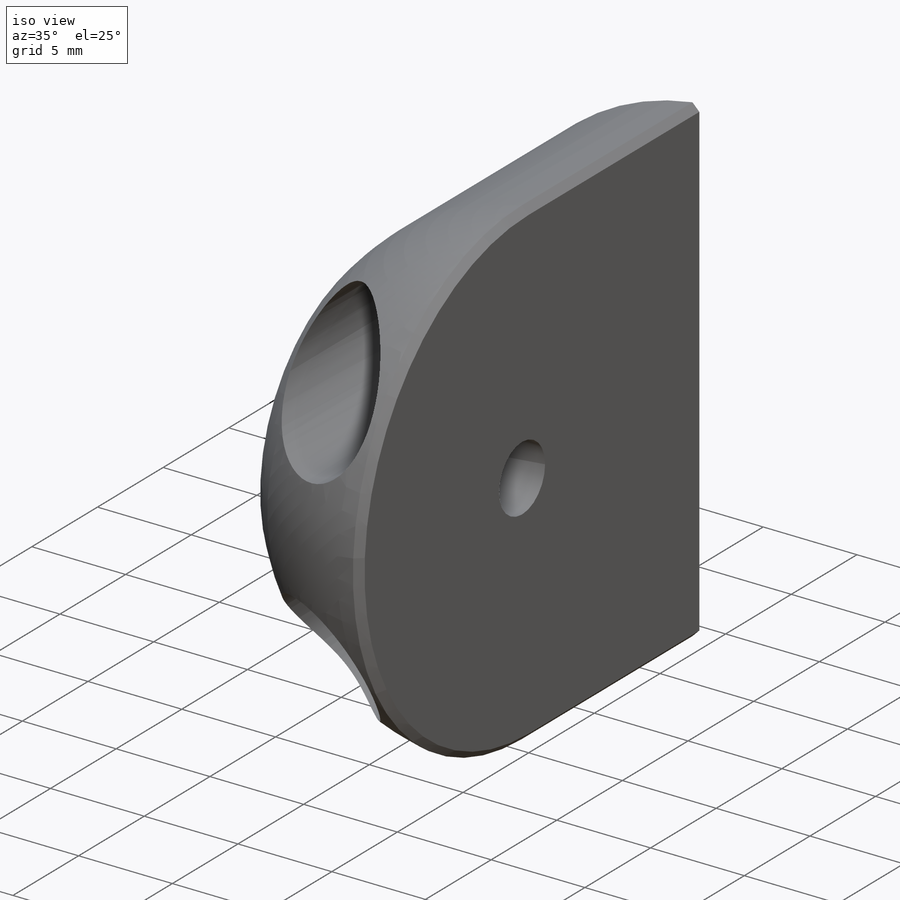
[diagram: iso view]
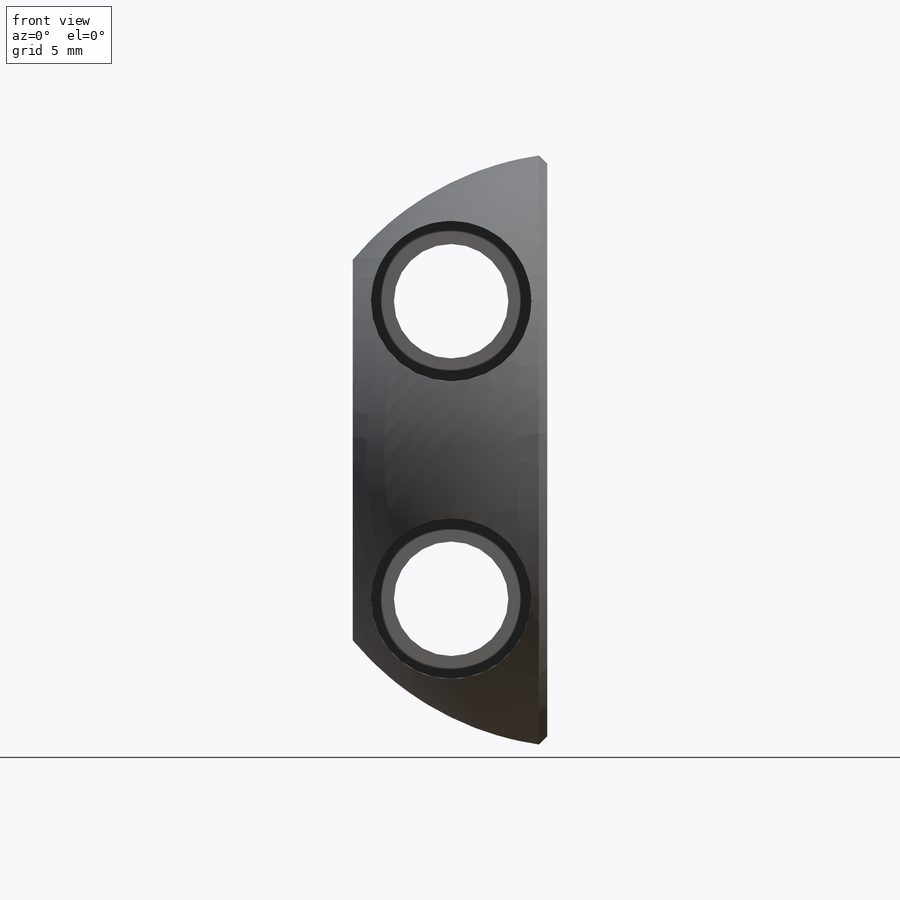
[diagram: front view]
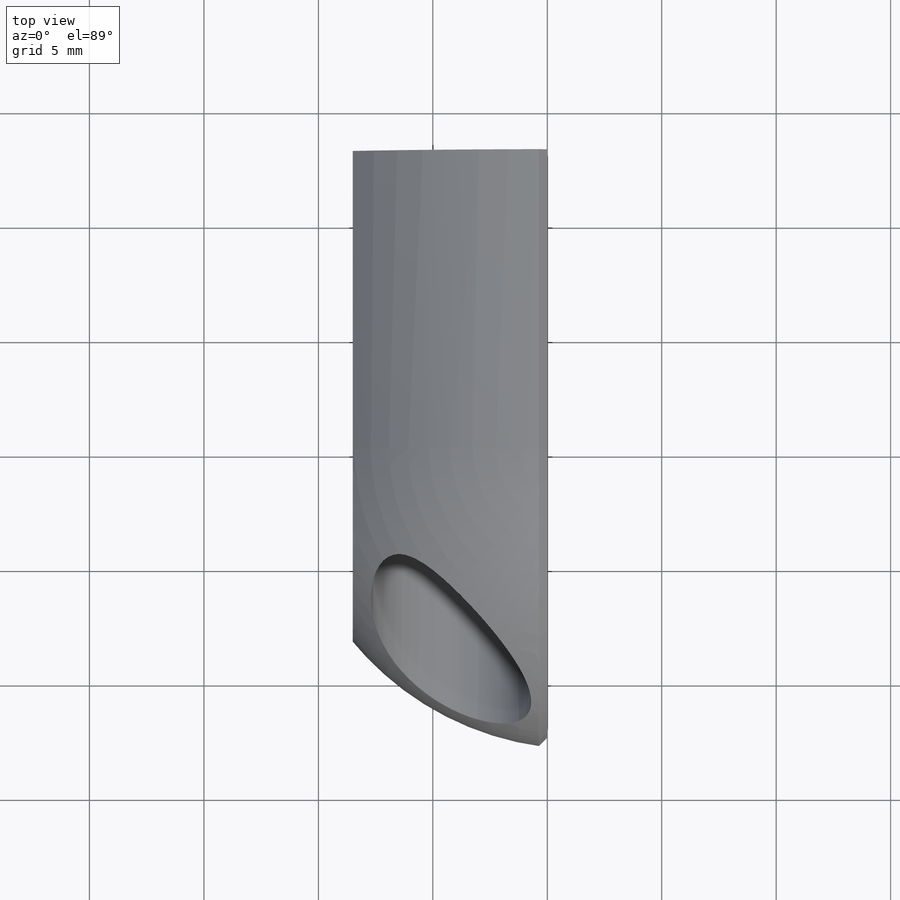
[diagram: top view]
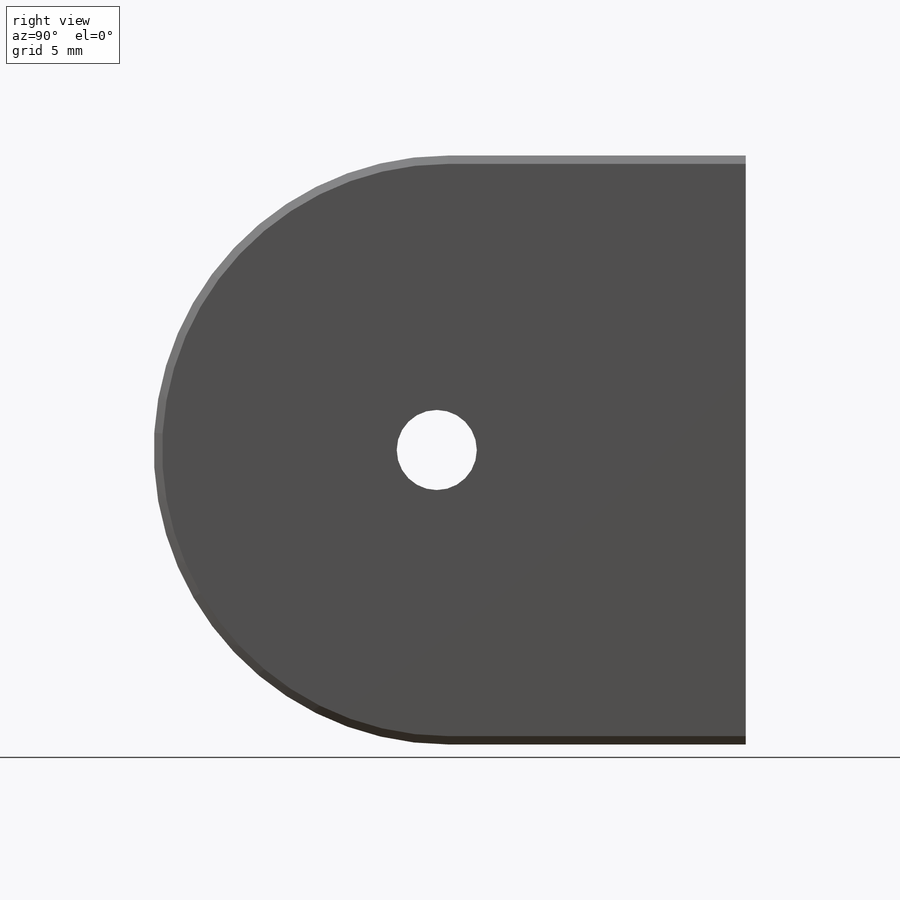
[diagram: right view]
SOLIDWORKS PART (.sldprt)
format: sldprt  version: not decoded by parser v0  size: 289,280 bytes
history: native  units: mm
features: sketch x9, cut_extrude x6, plane x3, material x1, revolve x1, extrude x1, chamfer x1 (+10 scaffold rows collapsed)
feature tree (32):
  scaffold x10  (default folders/planes/origin — collapsed)
  material  "Material <não especificado>"
  plane  "Plano frontal"
  plane  "Plano superior"
  plane  "Plano direito"
  sketch  "Esboço1"  dims[D1=0.0mm]
  sketch  "Esboço2"  dims[c1.D1=26.0mm c1.D2=26.0mm c2.D1=~0.902035mm]
  revolve  "Revolução1"  Angle=90deg
  sketch  "Esboço3"  dims[D1=2.0mm]
  cut_extrude  "Corte-extrusão1"  [1 undecoded]
  sketch  "Esboço7"  dims[D1=0.0mm]
  extrude  "Ressalto-extrusão1"  Depth=13mm
  sketch  "Esboço4"  dims[D1=3.0mm]
  cut_extrude  "Corte-extrusão3"  Depth=6.5mm
  sketch  "Esboço6"  dims[D1=12.5mm]
  cut_extrude  "Corte-extrusão4"  [1 undecoded]
  sketch  "Esboço8"  dims[D1=6.2mm]
  cut_extrude  "Corte-extrusão5"  Depth=13mm
  chamfer  "Chanfro1"  Distance=2mm Angle=45deg
  sketch  "Esboço9"  dims[D1=~18.52259mm]
  cut_extrude  "Corte-extrusão6"  [1 undecoded]
  sketch  "Esboço10"  dims[D2=1.5mm D1=0.0mm]
  cut_extrude  "Corte-extrusão7"  [1 undecoded]
decode coverage: 14 of 18 modeling features carry decoded parameters
note: ~ marks probable driven/reference dimensions
note: 4 parameter values undecoded
summary: no parameter record found for 4 features
note: suppression state not decoded; provenance and decode notes live in map.json
